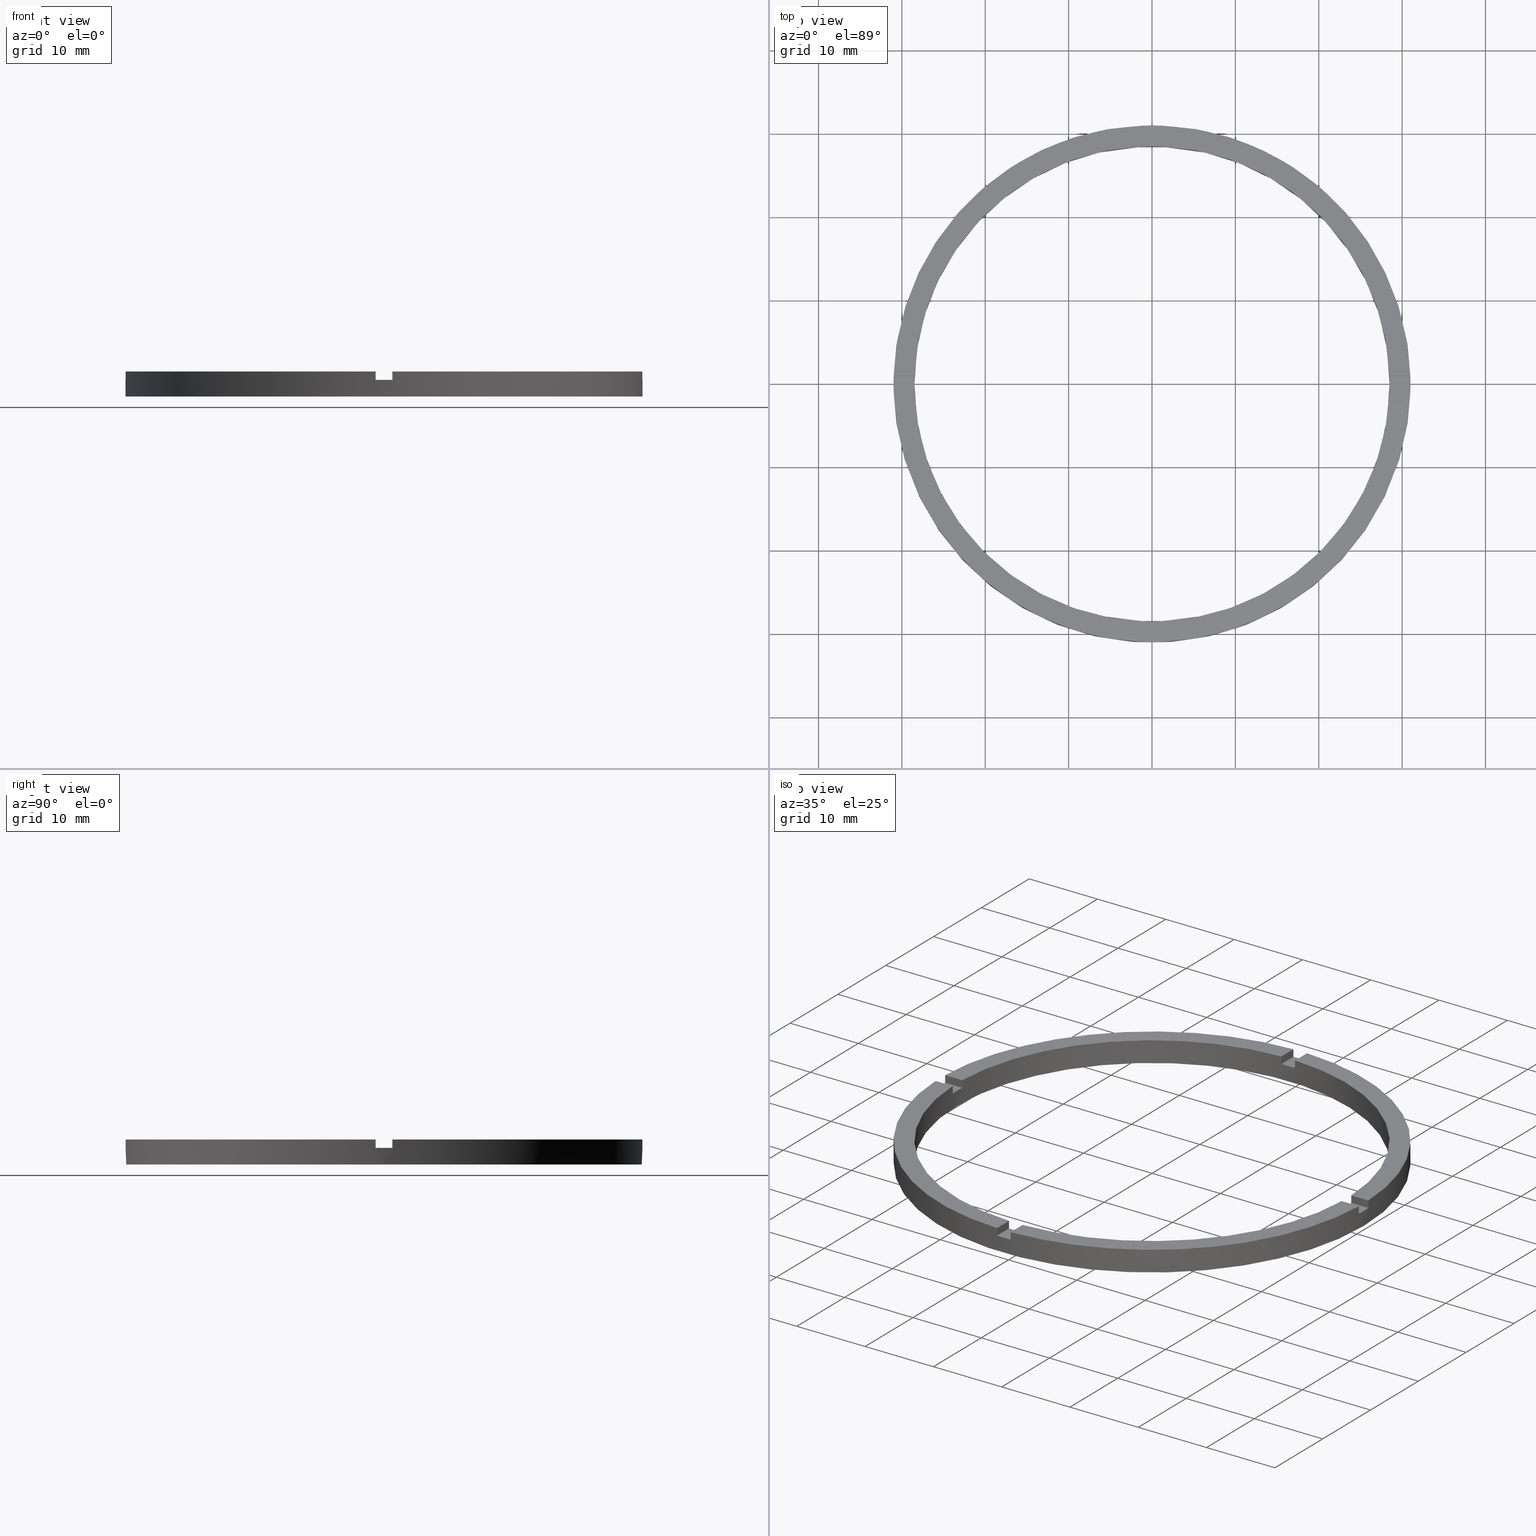
[diagram: canonical four-view strip — front | top / right | iso, engineering-drawing reading convention]
A machine part, canonical four-view strip (front | top / right | iso — engineering-drawing reading convention). The complete STEP part file that produces these views, byte-faithful:
ISO-10303-21;
HEADER;
FILE_DESCRIPTION (( 'STEP AP203' ),
    '1' );
FILE_NAME ('514129.step',
    '2024-12-26T02:40:17',
    ( 'MSI' ),
    ( '' ),
    'SwSTEP 2.0',
    'SolidWorks 2020',
    '' );
FILE_SCHEMA (( 'CONFIG_CONTROL_DESIGN' ));
ENDSEC;

DATA;
#1 = LINE ( 'NONE', #191, #290 ) ;
#2 = CIRCLE ( 'NONE', #505, 28.50000000000000000 ) ;
#3 = UNCERTAINTY_MEASURE_WITH_UNIT (LENGTH_MEASURE( 1.000000000000000082E-05 ), #296, 'distance_accuracy_value', 'NONE');
#4 = CIRCLE ( 'NONE', #220, 31.00000000000000000 ) ;
#5 = DIRECTION ( 'NONE',  ( 0.000000000000000000, 0.000000000000000000, 1.000000000000000000 ) ) ;
#6 = EDGE_CURVE ( 'NONE', #69, #391, #537, .T. ) ;
#7 = DIRECTION ( 'NONE',  ( -0.000000000000000000, 0.000000000000000000, 1.000000000000000000 ) ) ;
#8 = LINE ( 'NONE', #726, #284 ) ;
#9 = CARTESIAN_POINT ( 'NONE',  ( 0.000000000000000000, 0.000000000000000000, 2.000000000000000000 ) ) ;
#10 = APPROVAL_ROLE ( '' ) ;
#11 = EDGE_CURVE ( 'NONE', #58, #325, #530, .T. ) ;
#12 = CARTESIAN_POINT ( 'NONE',  ( -31.00000000000000000, 0.000000000000000000, 0.000000000000000000 ) ) ;
#13 = DIRECTION ( 'NONE',  ( 0.000000000000000000, 0.000000000000000000, 1.000000000000000000 ) ) ;
#14 = DIRECTION ( 'NONE',  ( -0.000000000000000000, -0.000000000000000000, -1.000000000000000000 ) ) ;
#15 = SECURITY_CLASSIFICATION ( '', '', #266 ) ;
#16 = CARTESIAN_POINT ( 'NONE',  ( -1.000000000000162759, -21.00000000000017764, 3.000000000000000000 ) ) ;
#17 = CARTESIAN_POINT ( 'NONE',  ( -30.98386676965933617, -1.000000000000025535, 3.000000000000000000 ) ) ;
#18 = EDGE_CURVE ( 'NONE', #131, #590, #282, .T. ) ;
#19 = DIRECTION ( 'NONE',  ( 0.000000000000000000, 0.000000000000000000, 1.000000000000000000 ) ) ;
#20 = VERTEX_POINT ( 'NONE', #611 ) ;
#21 = AXIS2_PLACEMENT_3D ( 'NONE', #546, #631, #159 ) ;
#22 = ORIENTED_EDGE ( 'NONE', *, *, #384, .T. ) ;
#23 = ORIENTED_EDGE ( 'NONE', *, *, #696, .T. ) ;
#24 = AXIS2_PLACEMENT_3D ( 'NONE', #273, #780, #117 ) ;
#25 = ORIENTED_EDGE ( 'NONE', *, *, #736, .T. ) ;
#26 = ORIENTED_EDGE ( 'NONE', *, *, #78, .F. ) ;
#27 = VERTEX_POINT ( 'NONE', #729 ) ;
#28 = ORIENTED_EDGE ( 'NONE', *, *, #85, .F. ) ;
#29 = CARTESIAN_POINT ( 'NONE',  ( 30.98386676965932907, -1.000000000000158762, 2.000000000000000000 ) ) ;
#30 = VERTEX_POINT ( 'NONE', #80 ) ;
#31 = EDGE_LOOP ( 'NONE', ( #408, #592, #417, #317, #728, #225, #138, #393, #727, #721, #118, #722 ) ) ;
#32 = CARTESIAN_POINT ( 'NONE',  ( 0.000000000000000000, 0.000000000000000000, 3.000000000000000000 ) ) ;
#33 = VERTEX_POINT ( 'NONE', #120 ) ;
#34 = ORIENTED_EDGE ( 'NONE', *, *, #18, .T. ) ;
#35 = DIRECTION ( 'NONE',  ( 1.951563910473907735E-16, -1.000000000000000000, 0.000000000000000000 ) ) ;
#36 = CLOSED_SHELL ( 'NONE', ( #681, #703, #248, #352, #355, #636, #167, #524, #362, #619, #385, #538, #279, #392, #88, #348, #753, #768, #455, #496, #529 ) ) ;
#37 = ORIENTED_EDGE ( 'NONE', *, *, #763, .F. ) ;
#38 = CARTESIAN_POINT ( 'NONE',  ( 30.98386676965932907, -1.000000000000158762, 3.000000000000000000 ) ) ;
#39 = DIRECTION ( 'NONE',  ( 1.000000000000000000, 0.000000000000000000, -0.000000000000000000 ) ) ;
#40 = ORIENTED_EDGE ( 'NONE', *, *, #621, .T. ) ;
#41 = ORIENTED_EDGE ( 'NONE', *, *, #724, .T. ) ;
#42 = EDGE_LOOP ( 'NONE', ( #59, #25, #54, #735, #765, #568 ) ) ;
#43 = DIRECTION ( 'NONE',  ( 0.000000000000000000, 1.000000000000000000, 0.000000000000000000 ) ) ;
#44 = VERTEX_POINT ( 'NONE', #271 ) ;
#45 = EDGE_CURVE ( 'NONE', #569, #309, #778, .T. ) ;
#46 = ORIENTED_EDGE ( 'NONE', *, *, #107, .T. ) ;
#47 = PLANE ( 'NONE',  #584 ) ;
#48 = PERSON_AND_ORGANIZATION_ROLE ( 'design_owner' ) ;
#49 = ORIENTED_EDGE ( 'NONE', *, *, #116, .T. ) ;
#50 = VERTEX_POINT ( 'NONE', #532 ) ;
#51 = ORIENTED_EDGE ( 'NONE', *, *, #112, .T. ) ;
#52 = ORIENTED_EDGE ( 'NONE', *, *, #281, .F. ) ;
#53 = DIRECTION ( 'NONE',  ( 0.000000000000000000, 0.000000000000000000, 1.000000000000000000 ) ) ;
#54 = ORIENTED_EDGE ( 'NONE', *, *, #562, .T. ) ;
#55 = ORIENTED_EDGE ( 'NONE', *, *, #228, .F. ) ;
#56 = DIRECTION ( 'NONE',  ( 1.301042606982605074E-16, -1.000000000000000000, 0.000000000000000000 ) ) ;
#57 = APPLICATION_PROTOCOL_DEFINITION ( 'international standard', 'config_control_design', 1994, #601 ) ;
#58 = VERTEX_POINT ( 'NONE', #589 ) ;
#59 = ORIENTED_EDGE ( 'NONE', *, *, #96, .T. ) ;
#60 = CIRCLE ( 'NONE', #557, 28.50000000000000000 ) ;
#61 = CIRCLE ( 'NONE', #659, 31.00000000000000000 ) ;
#62 = PLANE ( 'NONE',  #327 ) ;
#63 = ORIENTED_EDGE ( 'NONE', *, *, #416, .F. ) ;
#64 = EDGE_CURVE ( 'NONE', #412, #400, #275, .T. ) ;
#65 = LINE ( 'NONE', #328, #586 ) ;
#66 = VERTEX_POINT ( 'NONE', #625 ) ;
#67 = ORIENTED_EDGE ( 'NONE', *, *, #774, .F. ) ;
#68 = VERTEX_POINT ( 'NONE', #89 ) ;
#69 = VERTEX_POINT ( 'NONE', #466 ) ;
#70 = CC_DESIGN_PERSON_AND_ORGANIZATION_ASSIGNMENT ( #708, #431, ( #603 ) ) ;
#71 = ORIENTED_EDGE ( 'NONE', *, *, #358, .F. ) ;
#72 = EDGE_CURVE ( 'NONE', #661, #672, #528, .T. ) ;
#73 = AXIS2_PLACEMENT_3D ( 'NONE', #764, #297, #100 ) ;
#74 = DIRECTION ( 'NONE',  ( -0.000000000000000000, -0.000000000000000000, -1.000000000000000000 ) ) ;
#75 = AXIS2_PLACEMENT_3D ( 'NONE', #577, #19, #658 ) ;
#76 = DIRECTION ( 'NONE',  ( 0.000000000000000000, 0.000000000000000000, 1.000000000000000000 ) ) ;
#77 = DIRECTION ( 'NONE',  ( 0.000000000000000000, 0.000000000000000000, 1.000000000000000000 ) ) ;
#78 = EDGE_CURVE ( 'NONE', #50, #68, #540, .T. ) ;
#79 = AXIS2_PLACEMENT_3D ( 'NONE', #462, #345, #541 ) ;
#80 = CARTESIAN_POINT ( 'NONE',  ( 31.00000000000000000, 3.796405077356795115E-15, 0.000000000000000000 ) ) ;
#81 = CARTESIAN_POINT ( 'NONE',  ( -21.00000000000018119, 0.9999999999999763522, 2.000000000000000000 ) ) ;
#82 = DIRECTION ( 'NONE',  ( 1.000000000000000000, 0.000000000000000000, 0.000000000000000000 ) ) ;
#83 = APPROVAL_STATUS ( 'not_yet_approved' ) ;
#84 = DIRECTION ( 'NONE',  ( 1.000000000000000000, 0.000000000000000000, -0.000000000000000000 ) ) ;
#85 = EDGE_CURVE ( 'NONE', #648, #572, #770, .T. ) ;
#86 = CARTESIAN_POINT ( 'NONE',  ( 0.9999999999999754641, 30.98386676965933617, 3.000000000000000000 ) ) ;
#87 = PLANE ( 'NONE',  #489 ) ;
#88 = ADVANCED_FACE ( 'NONE', ( #781 ), #226, .T. ) ;
#89 = CARTESIAN_POINT ( 'NONE',  ( 30.98386676965932907, -1.000000000000158762, 3.000000000000000000 ) ) ;
#90 = CARTESIAN_POINT ( 'NONE',  ( -1.000000000000161871, -28.48245073725222554, 3.000000000000000000 ) ) ;
#91 = EDGE_CURVE ( 'NONE', #44, #672, #522, .T. ) ;
#92 = DIRECTION ( 'NONE',  ( 0.000000000000000000, 0.000000000000000000, 1.000000000000000000 ) ) ;
#93 = CARTESIAN_POINT ( 'NONE',  ( 0.000000000000000000, 0.000000000000000000, 3.000000000000000000 ) ) ;
#94 = DIRECTION ( 'NONE',  ( 0.000000000000000000, 0.000000000000000000, 1.000000000000000000 ) ) ;
#95 = CARTESIAN_POINT ( 'NONE',  ( -1.000000000000024425, 28.48245073725222909, 3.000000000000000000 ) ) ;
#96 = EDGE_CURVE ( 'NONE', #645, #180, #549, .T. ) ;
#97 = DIRECTION ( 'NONE',  ( -1.000000000000000000, 0.000000000000000000, 0.000000000000000000 ) ) ;
#98 = DIRECTION ( 'NONE',  ( 6.505213034913025371E-17, -1.000000000000000000, 0.000000000000000000 ) ) ;
#99 = AXIS2_PLACEMENT_3D ( 'NONE', #606, #730, #304 ) ;
#100 = DIRECTION ( 'NONE',  ( 1.000000000000000000, 0.000000000000000000, 0.000000000000000000 ) ) ;
#101 = CARTESIAN_POINT ( 'NONE',  ( -28.48245073725222909, -1.000000000000025091, 3.000000000000000000 ) ) ;
#102 = DIRECTION ( 'NONE',  ( -0.000000000000000000, -0.000000000000000000, -1.000000000000000000 ) ) ;
#103 = AXIS2_PLACEMENT_3D ( 'NONE', #223, #525, #295 ) ;
#104 = CARTESIAN_POINT ( 'NONE',  ( 0.000000000000000000, 0.000000000000000000, 3.000000000000000000 ) ) ;
#105 = CARTESIAN_POINT ( 'NONE',  ( 20.99999999999999289, -1.000000000000159428, 2.000000000000000000 ) ) ;
#106 = CARTESIAN_POINT ( 'NONE',  ( 0.9999999999999754641, 30.98386676965933617, 2.000000000000000000 ) ) ;
#107 = EDGE_CURVE ( 'NONE', #648, #44, #259, .T. ) ;
#108 = CARTESIAN_POINT ( 'NONE',  ( -21.00000000000018119, 0.9999999999999763522, 3.000000000000000000 ) ) ;
#109 = CC_DESIGN_APPROVAL ( #647, ( #208 ) ) ;
#110 = VECTOR ( 'NONE', #637, 1000.000000000000000 ) ;
#111 = APPROVAL_ROLE ( '' ) ;
#112 = EDGE_CURVE ( 'NONE', #572, #672, #269, .T. ) ;
#113 = CIRCLE ( 'NONE', #270, 28.50000000000000000 ) ;
#114 = CC_DESIGN_PERSON_AND_ORGANIZATION_ASSIGNMENT ( #723, #48, ( #670 ) ) ;
#115 = CARTESIAN_POINT ( 'NONE',  ( 0.000000000000000000, 0.000000000000000000, 0.000000000000000000 ) ) ;
#116 = EDGE_CURVE ( 'NONE', #569, #391, #4, .T. ) ;
#117 = DIRECTION ( 'NONE',  ( 1.000000000000000000, 0.000000000000000000, 0.000000000000000000 ) ) ;
#118 = ORIENTED_EDGE ( 'NONE', *, *, #196, .T. ) ;
#119 = LINE ( 'NONE', #272, #638 ) ;
#120 = CARTESIAN_POINT ( 'NONE',  ( 28.48245073725222554, -1.000000000000158762, 3.000000000000000000 ) ) ;
#121 = ORIENTED_EDGE ( 'NONE', *, *, #369, .F. ) ;
#122 = DIRECTION ( 'NONE',  ( 0.000000000000000000, 0.000000000000000000, 1.000000000000000000 ) ) ;
#123 = ORIENTED_EDGE ( 'NONE', *, *, #565, .F. ) ;
#124 = DIRECTION ( 'NONE',  ( 1.000000000000000000, 6.505213034913025371E-17, 0.000000000000000000 ) ) ;
#125 = EDGE_CURVE ( 'NONE', #397, #654, #288, .T. ) ;
#126 = CARTESIAN_POINT ( 'NONE',  ( 0.000000000000000000, 0.000000000000000000, 3.000000000000000000 ) ) ;
#127 = CARTESIAN_POINT ( 'NONE',  ( 0.000000000000000000, 0.000000000000000000, 2.000000000000000000 ) ) ;
#128 = DIRECTION ( 'NONE',  ( 0.000000000000000000, 0.000000000000000000, 1.000000000000000000 ) ) ;
#129 = EDGE_LOOP ( 'NONE', ( #160, #742, #720, #316 ) ) ;
#130 = DIRECTION ( 'NONE',  ( 1.301042606982605074E-16, -1.000000000000000000, 0.000000000000000000 ) ) ;
#131 = VERTEX_POINT ( 'NONE', #335 ) ;
#132 = EDGE_LOOP ( 'NONE', ( #23, #640, #587, #657 ) ) ;
#133 = DIRECTION ( 'NONE',  ( 0.000000000000000000, 0.000000000000000000, 1.000000000000000000 ) ) ;
#134 = ORIENTED_EDGE ( 'NONE', *, *, #752, .F. ) ;
#135 = CARTESIAN_POINT ( 'NONE',  ( -1.000000000000024425, 20.99999999999999645, 2.000000000000000000 ) ) ;
#136 = EDGE_LOOP ( 'NONE', ( #389, #137, #52, #63 ) ) ;
#137 = ORIENTED_EDGE ( 'NONE', *, *, #752, .T. ) ;
#138 = ORIENTED_EDGE ( 'NONE', *, *, #125, .T. ) ;
#139 = VECTOR ( 'NONE', #750, 1000.000000000000000 ) ;
#140 = DIRECTION ( 'NONE',  ( 0.000000000000000000, 0.000000000000000000, 1.000000000000000000 ) ) ;
#141 = PRODUCT_DEFINITION_SHAPE ( 'NONE', 'NONE',  #603 ) ;
#142 = FACE_OUTER_BOUND ( 'NONE', #725, .T. ) ;
#143 = CARTESIAN_POINT ( 'NONE',  ( -1.000000000000024425, 30.98386676965933617, 3.000000000000000000 ) ) ;
#144 = EDGE_CURVE ( 'NONE', #329, #66, #783, .T. ) ;
#145 = DIRECTION ( 'NONE',  ( -0.000000000000000000, -0.000000000000000000, -1.000000000000000000 ) ) ;
#146 = CIRCLE ( 'NONE', #73, 31.00000000000000000 ) ;
#147 = DESIGN_CONTEXT ( 'detailed design', #601, 'design' ) ;
#148 = LINE ( 'NONE', #688, #139 ) ;
#149 = ORIENTED_EDGE ( 'NONE', *, *, #607, .T. ) ;
#150 = FACE_OUTER_BOUND ( 'NONE', #42, .T. ) ;
#151 = DIRECTION ( 'NONE',  ( -0.000000000000000000, -0.000000000000000000, -1.000000000000000000 ) ) ;
#152 = ADVANCED_BREP_SHAPE_REPRESENTATION ( '514129', ( #629, #767 ), #360 ) ;
#153 = LINE ( 'NONE', #278, #685 ) ;
#154 = CC_DESIGN_DATE_AND_TIME_ASSIGNMENT ( #202, #260, ( #15 ) ) ;
#155 = CARTESIAN_POINT ( 'NONE',  ( -1.000000000000024425, 28.48245073725222909, 3.000000000000000000 ) ) ;
#156 = CARTESIAN_POINT ( 'NONE',  ( 0.000000000000000000, 0.000000000000000000, 3.000000000000000000 ) ) ;
#157 = FACE_OUTER_BOUND ( 'NONE', #132, .T. ) ;
#158 = AXIS2_PLACEMENT_3D ( 'NONE', #300, #597, #634 ) ;
#159 = DIRECTION ( 'NONE',  ( -1.000000000000000000, 0.000000000000000000, 0.000000000000000000 ) ) ;
#160 = ORIENTED_EDGE ( 'NONE', *, *, #510, .T. ) ;
#161 = VECTOR ( 'NONE', #624, 1000.000000000000000 ) ;
#162 = CARTESIAN_POINT ( 'NONE',  ( 28.48245073725223264, 0.9999999999998412381, 3.000000000000000000 ) ) ;
#163 = ORIENTED_EDGE ( 'NONE', *, *, #416, .T. ) ;
#164 = AXIS2_PLACEMENT_3D ( 'NONE', #32, #350, #387 ) ;
#165 = VECTOR ( 'NONE', #145, 1000.000000000000000 ) ;
#166 = VECTOR ( 'NONE', #337, 1000.000000000000000 ) ;
#167 = ADVANCED_FACE ( 'NONE', ( #291, #556 ), #527, .F. ) ;
#168 = CYLINDRICAL_SURFACE ( 'NONE', #21, 28.50000000000000000 ) ;
#169 = EDGE_CURVE ( 'NONE', #583, #654, #8, .T. ) ;
#170 = CYLINDRICAL_SURFACE ( 'NONE', #545, 31.00000000000000000 ) ;
#171 = ORIENTED_EDGE ( 'NONE', *, *, #192, .F. ) ;
#172 = LINE ( 'NONE', #585, #161 ) ;
#173 = LINE ( 'NONE', #454, #447 ) ;
#174 = CIRCLE ( 'NONE', #649, 31.00000000000000000 ) ;
#175 = AXIS2_PLACEMENT_3D ( 'NONE', #276, #219, #380 ) ;
#176 = ORIENTED_EDGE ( 'NONE', *, *, #72, .F. ) ;
#177 = VECTOR ( 'NONE', #124, 1000.000000000000000 ) ;
#178 = ORIENTED_EDGE ( 'NONE', *, *, #144, .T. ) ;
#179 = EDGE_CURVE ( 'NONE', #69, #409, #550, .T. ) ;
#180 = VERTEX_POINT ( 'NONE', #263 ) ;
#181 = ORGANIZATION ( 'δָ��', 'δָ��', '' ) ;
#182 = CARTESIAN_POINT ( 'NONE',  ( 0.000000000000000000, 0.000000000000000000, 3.000000000000000000 ) ) ;
#183 = DATE_AND_TIME ( #194, #461 ) ;
#184 = CARTESIAN_POINT ( 'NONE',  ( 0.9999999999999754641, 30.98386676965933617, 3.000000000000000000 ) ) ;
#185 = PERSON_AND_ORGANIZATION ( #287, #181 ) ;
#186 = DATE_TIME_ROLE ( 'creation_date' ) ;
#187 = CALENDAR_DATE ( 2024, 26, 12 ) ;
#188 = DIRECTION ( 'NONE',  ( 0.000000000000000000, 0.000000000000000000, 1.000000000000000000 ) ) ;
#189 = VERTEX_POINT ( 'NONE', #571 ) ;
#190 = PERSON_AND_ORGANIZATION ( #287, #181 ) ;
#191 = CARTESIAN_POINT ( 'NONE',  ( 28.48245073725223264, 0.9999999999998412381, 3.000000000000000000 ) ) ;
#192 = EDGE_CURVE ( 'NONE', #400, #732, #1, .T. ) ;
#193 = SHAPE_DEFINITION_REPRESENTATION ( #141, #152 ) ;
#194 = CALENDAR_DATE ( 2024, 26, 12 ) ;
#195 = DIRECTION ( 'NONE',  ( 1.301042606982605074E-16, -1.000000000000000000, 0.000000000000000000 ) ) ;
#196 = EDGE_CURVE ( 'NONE', #398, #33, #2, .T. ) ;
#197 = DIRECTION ( 'NONE',  ( -1.000000000000000000, -1.951563910473907735E-16, 0.000000000000000000 ) ) ;
#198 = ORIENTED_EDGE ( 'NONE', *, *, #216, .T. ) ;
#199 = ORIENTED_EDGE ( 'NONE', *, *, #78, .T. ) ;
#200 = DIRECTION ( 'NONE',  ( 1.000000000000000000, 0.000000000000000000, 0.000000000000000000 ) ) ;
#201 = APPROVAL_ROLE ( '' ) ;
#202 = DATE_AND_TIME ( #468, #702 ) ;
#203 = ORIENTED_EDGE ( 'NONE', *, *, #626, .F. ) ;
#204 = ORIENTED_EDGE ( 'NONE', *, *, #228, .T. ) ;
#205 = LOCAL_TIME ( 10, 40, 17.00000000000000000, #453 ) ;
#206 = DIRECTION ( 'NONE',  ( -1.301042606982605074E-16, 1.000000000000000000, 0.000000000000000000 ) ) ;
#207 = ORIENTED_EDGE ( 'NONE', *, *, #407, .F. ) ;
#208 = PRODUCT_DEFINITION_FORMATION_WITH_SPECIFIED_SOURCE ( '�κ�', '', #670, .NOT_KNOWN. ) ;
#209 = ORIENTED_EDGE ( 'NONE', *, *, #91, .T. ) ;
#210 = APPROVAL_DATE_TIME ( #700, #285 ) ;
#211 = CARTESIAN_POINT ( 'NONE',  ( -28.48245073725223264, 0.9999999999999749090, 2.000000000000000000 ) ) ;
#212 = ORIENTED_EDGE ( 'NONE', *, *, #107, .F. ) ;
#213 = DIRECTION ( 'NONE',  ( 0.000000000000000000, 0.000000000000000000, 1.000000000000000000 ) ) ;
#214 = ORIENTED_EDGE ( 'NONE', *, *, #96, .F. ) ;
#215 = AXIS2_PLACEMENT_3D ( 'NONE', #251, #98, #639 ) ;
#216 = EDGE_CURVE ( 'NONE', #180, #30, #553, .T. ) ;
#217 = DIRECTION ( 'NONE',  ( 0.000000000000000000, -0.000000000000000000, 1.000000000000000000 ) ) ;
#218 = EDGE_LOOP ( 'NONE', ( #37, #41, #579, #665 ) ) ;
#219 = DIRECTION ( 'NONE',  ( 0.000000000000000000, 0.000000000000000000, 1.000000000000000000 ) ) ;
#220 = AXIS2_PLACEMENT_3D ( 'NONE', #127, #666, #676 ) ;
#221 = CARTESIAN_POINT ( 'NONE',  ( -1.000000000000161871, -28.48245073725222554, 2.000000000000000000 ) ) ;
#222 = DATE_AND_TIME ( #187, #205 ) ;
#223 = CARTESIAN_POINT ( 'NONE',  ( 0.000000000000000000, 0.000000000000000000, 2.000000000000000000 ) ) ;
#224 = ORIENTED_EDGE ( 'NONE', *, *, #501, .F. ) ;
#225 = ORIENTED_EDGE ( 'NONE', *, *, #294, .F. ) ;
#226 = PLANE ( 'NONE',  #257 ) ;
#227 = ORIENTED_EDGE ( 'NONE', *, *, #361, .T. ) ;
#228 = EDGE_CURVE ( 'NONE', #322, #245, #531, .T. ) ;
#229 = DIRECTION ( 'NONE',  ( 0.000000000000000000, 0.000000000000000000, 1.000000000000000000 ) ) ;
#230 = AXIS2_PLACEMENT_3D ( 'NONE', #9, #128, #82 ) ;
#231 = VECTOR ( 'NONE', #615, 1000.000000000000000 ) ;
#232 = EDGE_LOOP ( 'NONE', ( #178, #149 ) ) ;
#233 = DIRECTION ( 'NONE',  ( 1.000000000000000000, 0.000000000000000000, 0.000000000000000000 ) ) ;
#234 = CARTESIAN_POINT ( 'NONE',  ( 20.99999999999999289, -1.000000000000159428, 3.000000000000000000 ) ) ;
#235 = LINE ( 'NONE', #737, #739 ) ;
#236 = DIRECTION ( 'NONE',  ( 1.000000000000000000, 0.000000000000000000, 0.000000000000000000 ) ) ;
#237 = VECTOR ( 'NONE', #195, 1000.000000000000000 ) ;
#238 = EDGE_CURVE ( 'NONE', #58, #322, #761, .T. ) ;
#239 = ORIENTED_EDGE ( 'NONE', *, *, #607, .F. ) ;
#240 = CARTESIAN_POINT ( 'NONE',  ( 0.000000000000000000, 0.000000000000000000, 3.000000000000000000 ) ) ;
#241 = LINE ( 'NONE', #442, #237 ) ;
#242 = FACE_OUTER_BOUND ( 'NONE', #334, .T. ) ;
#243 =( NAMED_UNIT ( * ) SI_UNIT ( $, .STERADIAN. ) SOLID_ANGLE_UNIT ( ) );
#244 = ORIENTED_EDGE ( 'NONE', *, *, #757, .T. ) ;
#245 = VERTEX_POINT ( 'NONE', #86 ) ;
#246 = ORIENTED_EDGE ( 'NONE', *, *, #655, .F. ) ;
#247 = DIRECTION ( 'NONE',  ( -1.000000000000000000, 0.000000000000000000, 0.000000000000000000 ) ) ;
#248 = ADVANCED_FACE ( 'NONE', ( #242 ), #521, .T. ) ;
#249 = CARTESIAN_POINT ( 'NONE',  ( -1.000000000000161426, -30.98386676965932907, 3.000000000000000000 ) ) ;
#250 = CARTESIAN_POINT ( 'NONE',  ( 0.9999999999998382405, -28.48245073725223264, 3.000000000000000000 ) ) ;
#251 = CARTESIAN_POINT ( 'NONE',  ( 20.99999999999999289, -1.000000000000159428, 2.000000000000000000 ) ) ;
#252 = CARTESIAN_POINT ( 'NONE',  ( -21.00000000000018119, -1.000000000000023759, 2.000000000000000000 ) ) ;
#253 = VECTOR ( 'NONE', #363, 1000.000000000000000 ) ;
#254 = CC_DESIGN_APPROVAL ( #285, ( #603 ) ) ;
#255 = EDGE_CURVE ( 'NONE', #50, #398, #509, .T. ) ;
#256 = VECTOR ( 'NONE', #526, 1000.000000000000000 ) ;
#257 = AXIS2_PLACEMENT_3D ( 'NONE', #289, #7, #459 ) ;
#258 = DIRECTION ( 'NONE',  ( -6.505213034913025371E-17, 1.000000000000000000, 0.000000000000000000 ) ) ;
#259 = LINE ( 'NONE', #81, #772 ) ;
#260 = DATE_TIME_ROLE ( 'classification_date' ) ;
#261 = EDGE_LOOP ( 'NONE', ( #336, #214, #423, #26, #244, #452, #481, #310, #487, #321, #719, #575 ) ) ;
#262 = DIRECTION ( 'NONE',  ( 1.000000000000000000, 0.000000000000000000, 0.000000000000000000 ) ) ;
#263 = CARTESIAN_POINT ( 'NONE',  ( 31.00000000000000000, 3.796405077356795115E-15, 2.000000000000000000 ) ) ;
#264 = AXIS2_PLACEMENT_3D ( 'NONE', #340, #292, #349 ) ;
#265 = LINE ( 'NONE', #581, #773 ) ;
#266 = SECURITY_CLASSIFICATION_LEVEL ( 'unclassified' ) ;
#267 = VECTOR ( 'NONE', #504, 1000.000000000000000 ) ;
#268 = FACE_OUTER_BOUND ( 'NONE', #136, .T. ) ;
#269 = LINE ( 'NONE', #108, #555 ) ;
#270 = AXIS2_PLACEMENT_3D ( 'NONE', #320, #313, #368 ) ;
#271 = CARTESIAN_POINT ( 'NONE',  ( -30.98386676965933617, 0.9999999999999744649, 2.000000000000000000 ) ) ;
#272 = CARTESIAN_POINT ( 'NONE',  ( -28.48245073725222909, -1.000000000000025091, 3.000000000000000000 ) ) ;
#273 = CARTESIAN_POINT ( 'NONE',  ( 0.000000000000000000, 0.000000000000000000, 3.000000000000000000 ) ) ;
#274 = CARTESIAN_POINT ( 'NONE',  ( 0.000000000000000000, 0.000000000000000000, 3.000000000000000000 ) ) ;
#275 = LINE ( 'NONE', #745, #775 ) ;
#276 = CARTESIAN_POINT ( 'NONE',  ( 0.000000000000000000, 0.000000000000000000, 3.000000000000000000 ) ) ;
#277 = PLANE ( 'NONE',  #744 ) ;
#278 = CARTESIAN_POINT ( 'NONE',  ( 20.99999999999999289, 0.9999999999998406830, 2.000000000000000000 ) ) ;
#279 = ADVANCED_FACE ( 'NONE', ( #734 ), #613, .F. ) ;
#280 = VECTOR ( 'NONE', #122, 1000.000000000000000 ) ;
#281 = EDGE_CURVE ( 'NONE', #189, #325, #235, .T. ) ;
#282 = LINE ( 'NONE', #506, #256 ) ;
#283 = DIRECTION ( 'NONE',  ( -1.000000000000000000, 0.000000000000000000, 0.000000000000000000 ) ) ;
#284 = VECTOR ( 'NONE', #77, 1000.000000000000000 ) ;
#285 = APPROVAL ( #446, 'δָ��' ) ;
#286 = EDGE_CURVE ( 'NONE', #583, #20, #241, .T. ) ;
#287 = PERSON ( 'δָ��', 'δָ��', 'δָ��', ('δָ��'), ('δָ��'), ('δָ��') ) ;
#288 = CIRCLE ( 'NONE', #175, 28.50000000000000000 ) ;
#289 = CARTESIAN_POINT ( 'NONE',  ( 0.000000000000000000, 0.000000000000000000, 2.000000000000000000 ) ) ;
#290 = VECTOR ( 'NONE', #74, 1000.000000000000000 ) ;
#291 = FACE_OUTER_BOUND ( 'NONE', #558, .T. ) ;
#292 = DIRECTION ( 'NONE',  ( 0.000000000000000000, 0.000000000000000000, 1.000000000000000000 ) ) ;
#293 = CARTESIAN_POINT ( 'NONE',  ( -28.48245073725223264, 0.9999999999999749090, 3.000000000000000000 ) ) ;
#294 = EDGE_CURVE ( 'NONE', #397, #646, #119, .T. ) ;
#295 = DIRECTION ( 'NONE',  ( 1.000000000000000000, 0.000000000000000000, 0.000000000000000000 ) ) ;
#296 =( LENGTH_UNIT ( ) NAMED_UNIT ( * ) SI_UNIT ( .MILLI., .METRE. ) );
#297 = DIRECTION ( 'NONE',  ( 0.000000000000000000, -0.000000000000000000, 1.000000000000000000 ) ) ;
#298 = ORIENTED_EDGE ( 'NONE', *, *, #671, .T. ) ;
#299 = ORIENTED_EDGE ( 'NONE', *, *, #286, .T. ) ;
#300 = CARTESIAN_POINT ( 'NONE',  ( 0.000000000000000000, 0.000000000000000000, 2.000000000000000000 ) ) ;
#301 = ORIENTED_EDGE ( 'NONE', *, *, #91, .F. ) ;
#302 = EDGE_LOOP ( 'NONE', ( #203, #467, #594, #199 ) ) ;
#303 = AXIS2_PLACEMENT_3D ( 'NONE', #684, #620, #741 ) ;
#304 = DIRECTION ( 'NONE',  ( -1.000000000000000000, 0.000000000000000000, 0.000000000000000000 ) ) ;
#305 = ORIENTED_EDGE ( 'NONE', *, *, #312, .F. ) ;
#306 = CARTESIAN_POINT ( 'NONE',  ( 0.000000000000000000, 0.000000000000000000, 0.000000000000000000 ) ) ;
#307 = DIRECTION ( 'NONE',  ( 1.000000000000000000, 6.505213034913025371E-17, 0.000000000000000000 ) ) ;
#308 = EDGE_LOOP ( 'NONE', ( #564, #396, #298, #55 ) ) ;
#309 = VERTEX_POINT ( 'NONE', #12 ) ;
#310 = ORIENTED_EDGE ( 'NONE', *, *, #179, .F. ) ;
#311 = VERTEX_POINT ( 'NONE', #376 ) ;
#312 = EDGE_CURVE ( 'NONE', #30, #309, #381, .T. ) ;
#313 = DIRECTION ( 'NONE',  ( 0.000000000000000000, 0.000000000000000000, 1.000000000000000000 ) ) ;
#314 = ORIENTED_EDGE ( 'NONE', *, *, #286, .F. ) ;
#315 = VERTEX_POINT ( 'NONE', #612 ) ;
#316 = ORIENTED_EDGE ( 'NONE', *, *, #6, .F. ) ;
#317 = ORIENTED_EDGE ( 'NONE', *, *, #473, .F. ) ;
#318 = VERTEX_POINT ( 'NONE', #404 ) ;
#319 = CC_DESIGN_PERSON_AND_ORGANIZATION_ASSIGNMENT ( #480, #559, ( #208 ) ) ;
#320 = CARTESIAN_POINT ( 'NONE',  ( 0.000000000000000000, 0.000000000000000000, 3.000000000000000000 ) ) ;
#321 = ORIENTED_EDGE ( 'NONE', *, *, #116, .F. ) ;
#322 = VERTEX_POINT ( 'NONE', #106 ) ;
#323 = AXIS2_PLACEMENT_3D ( 'NONE', #406, #756, #39 ) ;
#324 = EDGE_LOOP ( 'NONE', ( #314, #560, #682, #704 ) ) ;
#325 = VERTEX_POINT ( 'NONE', #507 ) ;
#326 = DIRECTION ( 'NONE',  ( -0.000000000000000000, -0.000000000000000000, -1.000000000000000000 ) ) ;
#327 = AXIS2_PLACEMENT_3D ( 'NONE', #182, #188, #652 ) ;
#328 = CARTESIAN_POINT ( 'NONE',  ( 0.9999999999998382405, -28.48245073725223264, 3.000000000000000000 ) ) ;
#329 = VERTEX_POINT ( 'NONE', #498 ) ;
#330 = DIRECTION ( 'NONE',  ( 1.000000000000000000, 0.000000000000000000, -0.000000000000000000 ) ) ;
#331 = ORIENTED_EDGE ( 'NONE', *, *, #192, .T. ) ;
#332 = FACE_OUTER_BOUND ( 'NONE', #324, .T. ) ;
#333 = LINE ( 'NONE', #755, #769 ) ;
#334 = EDGE_LOOP ( 'NONE', ( #476, #715, #344, #71 ) ) ;
#335 = CARTESIAN_POINT ( 'NONE',  ( 0.9999999999998386846, -30.98386676965933972, 2.000000000000000000 ) ) ;
#336 = ORIENTED_EDGE ( 'NONE', *, *, #216, .F. ) ;
#337 = DIRECTION ( 'NONE',  ( -0.000000000000000000, -1.000000000000000000, -0.000000000000000000 ) ) ;
#338 = EDGE_LOOP ( 'NONE', ( #738, #34, #121, #299 ) ) ;
#339 = ORIENTED_EDGE ( 'NONE', *, *, #358, .T. ) ;
#340 = CARTESIAN_POINT ( 'NONE',  ( 0.000000000000000000, 0.000000000000000000, 2.000000000000000000 ) ) ;
#341 = AXIS2_PLACEMENT_3D ( 'NONE', #664, #343, #206 ) ;
#342 = ORIENTED_EDGE ( 'NONE', *, *, #671, .F. ) ;
#343 = DIRECTION ( 'NONE',  ( 1.000000000000000000, 1.301042606982605074E-16, 0.000000000000000000 ) ) ;
#344 = ORIENTED_EDGE ( 'NONE', *, *, #112, .F. ) ;
#345 = DIRECTION ( 'NONE',  ( 0.000000000000000000, 0.000000000000000000, 1.000000000000000000 ) ) ;
#346 = DIRECTION ( 'NONE',  ( -1.000000000000000000, -6.505213034913025371E-17, -0.000000000000000000 ) ) ;
#347 = AXIS2_PLACEMENT_3D ( 'NONE', #544, #213, #596 ) ;
#348 = ADVANCED_FACE ( 'NONE', ( #635 ), #716, .F. ) ;
#349 = DIRECTION ( 'NONE',  ( 1.000000000000000000, 0.000000000000000000, 0.000000000000000000 ) ) ;
#350 = DIRECTION ( 'NONE',  ( 0.000000000000000000, 0.000000000000000000, 1.000000000000000000 ) ) ;
#351 = CARTESIAN_POINT ( 'NONE',  ( 0.9999999999999754641, 20.99999999999999645, 2.000000000000000000 ) ) ;
#352 = ADVANCED_FACE ( 'NONE', ( #383 ), #371, .T. ) ;
#353 = EDGE_CURVE ( 'NONE', #20, #409, #388, .T. ) ;
#354 = CARTESIAN_POINT ( 'NONE',  ( 0.9999999999999754641, 20.99999999999999645, 3.000000000000000000 ) ) ;
#355 = ADVANCED_FACE ( 'NONE', ( #632 ), #62, .T. ) ;
#356 = CARTESIAN_POINT ( 'NONE',  ( 0.000000000000000000, 0.000000000000000000, 0.000000000000000000 ) ) ;
#357 = CC_DESIGN_PERSON_AND_ORGANIZATION_ASSIGNMENT ( #190, #438, ( #208 ) ) ;
#358 = EDGE_CURVE ( 'NONE', #479, #572, #113, .T. ) ;
#359 = DIRECTION ( 'NONE',  ( 0.000000000000000000, 0.000000000000000000, 1.000000000000000000 ) ) ;
#360 =( GEOMETRIC_REPRESENTATION_CONTEXT ( 3 ) GLOBAL_UNCERTAINTY_ASSIGNED_CONTEXT ( ( #3 ) ) GLOBAL_UNIT_ASSIGNED_CONTEXT ( ( #296, #714, #243 ) ) REPRESENTATION_CONTEXT ( 'NONE', 'WORKASPACE' ) );
#361 = EDGE_CURVE ( 'NONE', #400, #27, #747, .T. ) ;
#362 = ADVANCED_FACE ( 'NONE', ( #511 ), #751, .F. ) ;
#363 = DIRECTION ( 'NONE',  ( 1.000000000000000000, 1.951563910473907735E-16, -0.000000000000000000 ) ) ;
#364 = DIRECTION ( 'NONE',  ( 0.000000000000000000, 0.000000000000000000, 1.000000000000000000 ) ) ;
#365 = EDGE_CURVE ( 'NONE', #391, #646, #513, .T. ) ;
#366 = DIRECTION ( 'NONE',  ( 1.000000000000000000, 0.000000000000000000, 0.000000000000000000 ) ) ;
#367 = AXIS2_PLACEMENT_3D ( 'NONE', #653, #617, #330 ) ;
#368 = DIRECTION ( 'NONE',  ( 1.000000000000000000, 0.000000000000000000, 0.000000000000000000 ) ) ;
#369 = EDGE_CURVE ( 'NONE', #583, #590, #754, .T. ) ;
#370 = CARTESIAN_POINT ( 'NONE',  ( 20.99999999999999289, 0.9999999999998406830, 2.000000000000000000 ) ) ;
#371 = PLANE ( 'NONE',  #548 ) ;
#372 = DIRECTION ( 'NONE',  ( -1.000000000000000000, -1.951563910473907735E-16, 0.000000000000000000 ) ) ;
#373 = EDGE_CURVE ( 'NONE', #398, #590, #65, .T. ) ;
#374 = CARTESIAN_POINT ( 'NONE',  ( 0.9999999999998373523, -21.00000000000017764, 3.000000000000000000 ) ) ;
#375 = DIRECTION ( 'NONE',  ( 1.000000000000000000, 0.000000000000000000, 0.000000000000000000 ) ) ;
#376 = CARTESIAN_POINT ( 'NONE',  ( 30.98386676965933972, 0.9999999999998412381, 2.000000000000000000 ) ) ;
#377 = DIRECTION ( 'NONE',  ( 0.000000000000000000, 0.000000000000000000, 1.000000000000000000 ) ) ;
#378 = CARTESIAN_POINT ( 'NONE',  ( 0.000000000000000000, 0.000000000000000000, 3.000000000000000000 ) ) ;
#379 = AXIS2_PLACEMENT_3D ( 'NONE', #609, #133, #514 ) ;
#380 = DIRECTION ( 'NONE',  ( 1.000000000000000000, 0.000000000000000000, 0.000000000000000000 ) ) ;
#381 = CIRCLE ( 'NONE', #608, 31.00000000000000000 ) ;
#382 = CARTESIAN_POINT ( 'NONE',  ( 0.000000000000000000, 0.000000000000000000, 2.000000000000000000 ) ) ;
#383 = FACE_OUTER_BOUND ( 'NONE', #491, .T. ) ;
#384 = EDGE_CURVE ( 'NONE', #648, #318, #60, .T. ) ;
#385 = ADVANCED_FACE ( 'NONE', ( #588 ), #401, .F. ) ;
#386 = AXIS2_PLACEMENT_3D ( 'NONE', #382, #229, #200 ) ;
#387 = DIRECTION ( 'NONE',  ( 1.000000000000000000, 0.000000000000000000, 0.000000000000000000 ) ) ;
#388 = LINE ( 'NONE', #249, #110 ) ;
#389 = ORIENTED_EDGE ( 'NONE', *, *, #614, .T. ) ;
#390 = AXIS2_PLACEMENT_3D ( 'NONE', #104, #435, #427 ) ;
#391 = VERTEX_POINT ( 'NONE', #600 ) ;
#392 = ADVANCED_FACE ( 'NONE', ( #332 ), #551, .F. ) ;
#393 = ORIENTED_EDGE ( 'NONE', *, *, #169, .F. ) ;
#394 = PLANE ( 'NONE',  #347 ) ;
#395 = PLANE ( 'NONE',  #215 ) ;
#396 = ORIENTED_EDGE ( 'NONE', *, *, #444, .T. ) ;
#397 = VERTEX_POINT ( 'NONE', #101 ) ;
#398 = VERTEX_POINT ( 'NONE', #250 ) ;
#399 = CARTESIAN_POINT ( 'NONE',  ( -30.98386676965933617, 0.9999999999999744649, 3.000000000000000000 ) ) ;
#400 = VERTEX_POINT ( 'NONE', #162 ) ;
#401 = PLANE ( 'NONE',  #432 ) ;
#402 = ORIENTED_EDGE ( 'NONE', *, *, #642, .F. ) ;
#403 = ORIENTED_EDGE ( 'NONE', *, *, #18, .F. ) ;
#404 = CARTESIAN_POINT ( 'NONE',  ( -28.50000000000000000, 0.000000000000000000, 2.000000000000000000 ) ) ;
#405 = CARTESIAN_POINT ( 'NONE',  ( -21.00000000000018119, 0.9999999999999763522, 2.000000000000000000 ) ) ;
#406 = CARTESIAN_POINT ( 'NONE',  ( 0.000000000000000000, 0.000000000000000000, 2.000000000000000000 ) ) ;
#407 = EDGE_CURVE ( 'NONE', #309, #30, #61, .T. ) ;
#408 = ORIENTED_EDGE ( 'NONE', *, *, #520, .T. ) ;
#409 = VERTEX_POINT ( 'NONE', #472 ) ;
#410 = EDGE_LOOP ( 'NONE', ( #224, #712, #471, #502 ) ) ;
#411 = LINE ( 'NONE', #38, #422 ) ;
#412 = VERTEX_POINT ( 'NONE', #698 ) ;
#413 = CYLINDRICAL_SURFACE ( 'NONE', #610, 31.00000000000000000 ) ;
#414 = EDGE_LOOP ( 'NONE', ( #695, #573, #403, #500 ) ) ;
#415 = LINE ( 'NONE', #697, #424 ) ;
#416 = EDGE_CURVE ( 'NONE', #661, #189, #333, .T. ) ;
#417 = ORIENTED_EDGE ( 'NONE', *, *, #144, .F. ) ;
#418 = FACE_OUTER_BOUND ( 'NONE', #308, .T. ) ;
#419 = DIRECTION ( 'NONE',  ( -0.000000000000000000, 0.000000000000000000, 1.000000000000000000 ) ) ;
#420 = LINE ( 'NONE', #105, #677 ) ;
#421 = ORIENTED_EDGE ( 'NONE', *, *, #11, .T. ) ;
#422 = VECTOR ( 'NONE', #94, 1000.000000000000000 ) ;
#423 = ORIENTED_EDGE ( 'NONE', *, *, #535, .T. ) ;
#424 = VECTOR ( 'NONE', #53, 1000.000000000000000 ) ;
#425 = ORIENTED_EDGE ( 'NONE', *, *, #696, .F. ) ;
#426 = FACE_OUTER_BOUND ( 'NONE', #650, .T. ) ;
#427 = DIRECTION ( 'NONE',  ( 1.000000000000000000, 0.000000000000000000, 0.000000000000000000 ) ) ;
#428 = FACE_OUTER_BOUND ( 'NONE', #31, .T. ) ;
#429 = DIRECTION ( 'NONE',  ( 0.000000000000000000, 0.000000000000000000, 1.000000000000000000 ) ) ;
#430 = LINE ( 'NONE', #234, #177 ) ;
#431 = PERSON_AND_ORGANIZATION_ROLE ( 'creator' ) ;
#432 = AXIS2_PLACEMENT_3D ( 'NONE', #405, #494, #766 ) ;
#433 = VECTOR ( 'NONE', #130, 1000.000000000000000 ) ;
#434 = CARTESIAN_POINT ( 'NONE',  ( 0.000000000000000000, 0.000000000000000000, 2.000000000000000000 ) ) ;
#435 = DIRECTION ( 'NONE',  ( 0.000000000000000000, 0.000000000000000000, 1.000000000000000000 ) ) ;
#436 = VECTOR ( 'NONE', #102, 1000.000000000000000 ) ;
#437 = CARTESIAN_POINT ( 'NONE',  ( 0.000000000000000000, 0.000000000000000000, 3.000000000000000000 ) ) ;
#438 = PERSON_AND_ORGANIZATION_ROLE ( 'design_supplier' ) ;
#439 = FACE_OUTER_BOUND ( 'NONE', #129, .T. ) ;
#440 = LINE ( 'NONE', #95, #436 ) ;
#441 = CARTESIAN_POINT ( 'NONE',  ( -31.00000000000000000, 0.000000000000000000, 3.000000000000000000 ) ) ;
#442 = CARTESIAN_POINT ( 'NONE',  ( -1.000000000000162759, -21.00000000000017764, 2.000000000000000000 ) ) ;
#443 = LINE ( 'NONE', #552, #165 ) ;
#444 = EDGE_CURVE ( 'NONE', #58, #27, #265, .T. ) ;
#445 = CARTESIAN_POINT ( 'NONE',  ( 0.9999999999999754641, 20.99999999999999645, 2.000000000000000000 ) ) ;
#446 = APPROVAL_STATUS ( 'not_yet_approved' ) ;
#447 = VECTOR ( 'NONE', #14, 1000.000000000000000 ) ;
#448 = DIRECTION ( 'NONE',  ( -0.000000000000000000, -0.000000000000000000, -1.000000000000000000 ) ) ;
#449 = DIRECTION ( 'NONE',  ( 0.000000000000000000, 0.000000000000000000, 1.000000000000000000 ) ) ;
#450 = PERSON_AND_ORGANIZATION ( #287, #181 ) ;
#451 = DIRECTION ( 'NONE',  ( 1.000000000000000000, 0.000000000000000000, -0.000000000000000000 ) ) ;
#452 = ORIENTED_EDGE ( 'NONE', *, *, #457, .F. ) ;
#453 = COORDINATED_UNIVERSAL_TIME_OFFSET ( 8, 0, .AHEAD. ) ;
#454 = CARTESIAN_POINT ( 'NONE',  ( 30.98386676965933972, 0.9999999999998412381, 3.000000000000000000 ) ) ;
#455 = ADVANCED_FACE ( 'NONE', ( #268 ), #87, .F. ) ;
#456 = DIRECTION ( 'NONE',  ( 1.000000000000000000, 0.000000000000000000, 0.000000000000000000 ) ) ;
#457 = EDGE_CURVE ( 'NONE', #20, #131, #539, .T. ) ;
#458 = CALENDAR_DATE ( 2024, 26, 12 ) ;
#459 = DIRECTION ( 'NONE',  ( 1.000000000000000000, 0.000000000000000000, 0.000000000000000000 ) ) ;
#460 = EDGE_LOOP ( 'NONE', ( #212, #651, #51, #301 ) ) ;
#461 = LOCAL_TIME ( 10, 40, 17.00000000000000000, #477 ) ;
#462 = CARTESIAN_POINT ( 'NONE',  ( 0.000000000000000000, 0.000000000000000000, 0.000000000000000000 ) ) ;
#463 = CALENDAR_DATE ( 2024, 26, 12 ) ;
#464 = COORDINATED_UNIVERSAL_TIME_OFFSET ( 8, 0, .AHEAD. ) ;
#465 = PERSON_AND_ORGANIZATION ( #287, #181 ) ;
#466 = CARTESIAN_POINT ( 'NONE',  ( -30.98386676965933617, -1.000000000000025535, 3.000000000000000000 ) ) ;
#467 = ORIENTED_EDGE ( 'NONE', *, *, #196, .F. ) ;
#468 = CALENDAR_DATE ( 2024, 26, 12 ) ;
#469 = CARTESIAN_POINT ( 'NONE',  ( 0.9999999999998382405, -28.48245073725223264, 2.000000000000000000 ) ) ;
#470 = COORDINATED_UNIVERSAL_TIME_OFFSET ( 8, 0, .AHEAD. ) ;
#471 = ORIENTED_EDGE ( 'NONE', *, *, #510, .F. ) ;
#472 = CARTESIAN_POINT ( 'NONE',  ( -1.000000000000161426, -30.98386676965932907, 3.000000000000000000 ) ) ;
#473 = EDGE_CURVE ( 'NONE', #318, #329, #777, .T. ) ;
#474 = ORIENTED_EDGE ( 'NONE', *, *, #473, .T. ) ;
#475 = APPROVAL_PERSON_ORGANIZATION ( #450, #285, #10 ) ;
#476 = ORIENTED_EDGE ( 'NONE', *, *, #614, .F. ) ;
#477 = COORDINATED_UNIVERSAL_TIME_OFFSET ( 8, 0, .AHEAD. ) ;
#478 = CARTESIAN_POINT ( 'NONE',  ( -31.00000000000000000, 0.000000000000000000, 2.000000000000000000 ) ) ;
#479 = VERTEX_POINT ( 'NONE', #155 ) ;
#480 = PERSON_AND_ORGANIZATION ( #287, #181 ) ;
#481 = ORIENTED_EDGE ( 'NONE', *, *, #353, .T. ) ;
#482 = APPLICATION_PROTOCOL_DEFINITION ( 'international standard', 'config_control_design', 1994, #547 ) ;
#483 = PERSON_AND_ORGANIZATION ( #287, #181 ) ;
#484 = AXIS2_PLACEMENT_3D ( 'NONE', #434, #217, #456 ) ;
#485 = DATE_AND_TIME ( #463, #705 ) ;
#486 = ORIENTED_EDGE ( 'NONE', *, *, #45, .F. ) ;
#487 = ORIENTED_EDGE ( 'NONE', *, *, #6, .T. ) ;
#488 = APPROVAL_DATE_TIME ( #222, #647 ) ;
#489 = AXIS2_PLACEMENT_3D ( 'NONE', #135, #97, #536 ) ;
#490 = COORDINATED_UNIVERSAL_TIME_OFFSET ( 8, 0, .AHEAD. ) ;
#491 = EDGE_LOOP ( 'NONE', ( #342, #495, #709, #595 ) ) ;
#492 = ORIENTED_EDGE ( 'NONE', *, *, #565, .T. ) ;
#493 = CARTESIAN_POINT ( 'NONE',  ( 0.000000000000000000, 0.000000000000000000, 2.000000000000000000 ) ) ;
#494 = DIRECTION ( 'NONE',  ( -1.951563910473907735E-16, 1.000000000000000000, 0.000000000000000000 ) ) ;
#495 = ORIENTED_EDGE ( 'NONE', *, *, #361, .F. ) ;
#496 = ADVANCED_FACE ( 'NONE', ( #418 ), #47, .F. ) ;
#497 = VECTOR ( 'NONE', #576, 1000.000000000000000 ) ;
#498 = CARTESIAN_POINT ( 'NONE',  ( -28.50000000000000000, 0.000000000000000000, 0.000000000000000000 ) ) ;
#499 = CC_DESIGN_PERSON_AND_ORGANIZATION_ASSIGNMENT ( #483, #660, ( #15 ) ) ;
#500 = ORIENTED_EDGE ( 'NONE', *, *, #757, .F. ) ;
#501 = EDGE_CURVE ( 'NONE', #654, #409, #686, .T. ) ;
#502 = ORIENTED_EDGE ( 'NONE', *, *, #179, .T. ) ;
#503 = DIRECTION ( 'NONE',  ( -0.000000000000000000, -0.000000000000000000, -1.000000000000000000 ) ) ;
#504 = DIRECTION ( 'NONE',  ( -0.000000000000000000, -0.000000000000000000, -1.000000000000000000 ) ) ;
#505 = AXIS2_PLACEMENT_3D ( 'NONE', #437, #429, #375 ) ;
#506 = CARTESIAN_POINT ( 'NONE',  ( 0.9999999999998373523, -21.00000000000017764, 2.000000000000000000 ) ) ;
#507 = CARTESIAN_POINT ( 'NONE',  ( -1.000000000000024425, 28.48245073725222909, 2.000000000000000000 ) ) ;
#508 = CARTESIAN_POINT ( 'NONE',  ( 31.00000000000000000, 3.796405077356795115E-15, 3.000000000000000000 ) ) ;
#509 = LINE ( 'NONE', #374, #497 ) ;
#510 = EDGE_CURVE ( 'NONE', #69, #397, #172, .T. ) ;
#511 = FACE_OUTER_BOUND ( 'NONE', #598, .T. ) ;
#512 = DIRECTION ( 'NONE',  ( -0.000000000000000000, -0.000000000000000000, -1.000000000000000000 ) ) ;
#513 = LINE ( 'NONE', #252, #253 ) ;
#514 = DIRECTION ( 'NONE',  ( 1.000000000000000000, 0.000000000000000000, 0.000000000000000000 ) ) ;
#515 = CARTESIAN_POINT ( 'NONE',  ( -28.48245073725222909, -1.000000000000025091, 2.000000000000000000 ) ) ;
#516 = APPROVAL_STATUS ( 'not_yet_approved' ) ;
#517 = DIRECTION ( 'NONE',  ( -0.000000000000000000, -0.000000000000000000, -1.000000000000000000 ) ) ;
#518 = DIRECTION ( 'NONE',  ( -0.000000000000000000, -1.000000000000000000, -0.000000000000000000 ) ) ;
#519 = VECTOR ( 'NONE', #570, 1000.000000000000000 ) ;
#520 = EDGE_CURVE ( 'NONE', #644, #315, #692, .T. ) ;
#521 = PLANE ( 'NONE',  #740 ) ;
#522 = LINE ( 'NONE', #567, #280 ) ;
#523 = VECTOR ( 'NONE', #326, 1000.000000000000000 ) ;
#524 = ADVANCED_FACE ( 'NONE', ( #690 ), #413, .T. ) ;
#525 = DIRECTION ( 'NONE',  ( -0.000000000000000000, 0.000000000000000000, 1.000000000000000000 ) ) ;
#526 = DIRECTION ( 'NONE',  ( -1.301042606982605074E-16, 1.000000000000000000, -0.000000000000000000 ) ) ;
#527 = PLANE ( 'NONE',  #367 ) ;
#528 = CIRCLE ( 'NONE', #164, 31.00000000000000000 ) ;
#529 = ADVANCED_FACE ( 'NONE', ( #157 ), #616, .T. ) ;
#530 = CIRCLE ( 'NONE', #484, 28.50000000000000000 ) ;
#531 = LINE ( 'NONE', #184, #760 ) ;
#532 = CARTESIAN_POINT ( 'NONE',  ( 0.9999999999998386846, -30.98386676965933972, 3.000000000000000000 ) ) ;
#533 = VECTOR ( 'NONE', #683, 1000.000000000000000 ) ;
#534 = CARTESIAN_POINT ( 'NONE',  ( 28.48245073725222554, -1.000000000000158762, 2.000000000000000000 ) ) ;
#535 = EDGE_CURVE ( 'NONE', #645, #68, #411, .T. ) ;
#536 = DIRECTION ( 'NONE',  ( 0.000000000000000000, 0.000000000000000000, 1.000000000000000000 ) ) ;
#537 = LINE ( 'NONE', #17, #523 ) ;
#538 = ADVANCED_FACE ( 'NONE', ( #142 ), #394, .T. ) ;
#539 = CIRCLE ( 'NONE', #103, 31.00000000000000000 ) ;
#540 = CIRCLE ( 'NONE', #628, 31.00000000000000000 ) ;
#541 = DIRECTION ( 'NONE',  ( 1.000000000000000000, 0.000000000000000000, 0.000000000000000000 ) ) ;
#542 = VECTOR ( 'NONE', #517, 1000.000000000000000 ) ;
#543 = CC_DESIGN_DATE_AND_TIME_ASSIGNMENT ( #183, #186, ( #603 ) ) ;
#544 = CARTESIAN_POINT ( 'NONE',  ( 0.000000000000000000, 0.000000000000000000, 2.000000000000000000 ) ) ;
#545 = AXIS2_PLACEMENT_3D ( 'NONE', #240, #151, #247 ) ;
#546 = CARTESIAN_POINT ( 'NONE',  ( 0.000000000000000000, 0.000000000000000000, 3.000000000000000000 ) ) ;
#547 = APPLICATION_CONTEXT ( 'configuration controlled 3d designs of mechanical parts and assemblies' ) ;
#548 = AXIS2_PLACEMENT_3D ( 'NONE', #771, #779, #776 ) ;
#549 = CIRCLE ( 'NONE', #75, 31.00000000000000000 ) ;
#550 = CIRCLE ( 'NONE', #24, 31.00000000000000000 ) ;
#551 = PLANE ( 'NONE',  #554 ) ;
#552 = CARTESIAN_POINT ( 'NONE',  ( 0.9999999999998386846, -30.98386676965933972, 3.000000000000000000 ) ) ;
#553 = LINE ( 'NONE', #508, #267 ) ;
#554 = AXIS2_PLACEMENT_3D ( 'NONE', #633, #706, #56 ) ;
#555 = VECTOR ( 'NONE', #372, 1000.000000000000000 ) ;
#556 = FACE_BOUND ( 'NONE', #232, .T. ) ;
#557 = AXIS2_PLACEMENT_3D ( 'NONE', #561, #5, #366 ) ;
#558 = EDGE_LOOP ( 'NONE', ( #207, #305 ) ) ;
#559 = PERSON_AND_ORGANIZATION_ROLE ( 'creator' ) ;
#560 = ORIENTED_EDGE ( 'NONE', *, *, #169, .T. ) ;
#561 = CARTESIAN_POINT ( 'NONE',  ( 0.000000000000000000, 0.000000000000000000, 2.000000000000000000 ) ) ;
#562 = EDGE_CURVE ( 'NONE', #311, #732, #153, .T. ) ;
#563 = ORIENTED_EDGE ( 'NONE', *, *, #736, .F. ) ;
#564 = ORIENTED_EDGE ( 'NONE', *, *, #238, .F. ) ;
#565 = EDGE_CURVE ( 'NONE', #412, #311, #173, .T. ) ;
#566 = EDGE_LOOP ( 'NONE', ( #641, #331, #574, #123 ) ) ;
#567 = CARTESIAN_POINT ( 'NONE',  ( -30.98386676965933617, 0.9999999999999744649, 3.000000000000000000 ) ) ;
#568 = ORIENTED_EDGE ( 'NONE', *, *, #763, .T. ) ;
#569 = VERTEX_POINT ( 'NONE', #478 ) ;
#570 = DIRECTION ( 'NONE',  ( -0.000000000000000000, -0.000000000000000000, -1.000000000000000000 ) ) ;
#571 = CARTESIAN_POINT ( 'NONE',  ( -1.000000000000024425, 30.98386676965933617, 2.000000000000000000 ) ) ;
#572 = VERTEX_POINT ( 'NONE', #733 ) ;
#573 = ORIENTED_EDGE ( 'NONE', *, *, #373, .T. ) ;
#574 = ORIENTED_EDGE ( 'NONE', *, *, #562, .F. ) ;
#575 = ORIENTED_EDGE ( 'NONE', *, *, #407, .T. ) ;
#576 = DIRECTION ( 'NONE',  ( -1.301042606982605074E-16, 1.000000000000000000, -0.000000000000000000 ) ) ;
#577 = CARTESIAN_POINT ( 'NONE',  ( 0.000000000000000000, 0.000000000000000000, 2.000000000000000000 ) ) ;
#578 = AXIS2_PLACEMENT_3D ( 'NONE', #493, #419, #604 ) ;
#579 = ORIENTED_EDGE ( 'NONE', *, *, #626, .T. ) ;
#580 = ORIENTED_EDGE ( 'NONE', *, *, #642, .T. ) ;
#581 = CARTESIAN_POINT ( 'NONE',  ( 0.9999999999999754641, 28.48245073725223264, 3.000000000000000000 ) ) ;
#582 = ORIENTED_EDGE ( 'NONE', *, *, #384, .F. ) ;
#583 = VERTEX_POINT ( 'NONE', #221 ) ;
#584 = AXIS2_PLACEMENT_3D ( 'NONE', #351, #591, #680 ) ;
#585 = CARTESIAN_POINT ( 'NONE',  ( -21.00000000000018119, -1.000000000000023759, 3.000000000000000000 ) ) ;
#586 = VECTOR ( 'NONE', #503, 1000.000000000000000 ) ;
#587 = ORIENTED_EDGE ( 'NONE', *, *, #11, .F. ) ;
#588 = FACE_OUTER_BOUND ( 'NONE', #460, .T. ) ;
#589 = CARTESIAN_POINT ( 'NONE',  ( 0.9999999999999754641, 28.48245073725223264, 2.000000000000000000 ) ) ;
#590 = VERTEX_POINT ( 'NONE', #469 ) ;
#591 = DIRECTION ( 'NONE',  ( 1.000000000000000000, -0.000000000000000000, 0.000000000000000000 ) ) ;
#592 = ORIENTED_EDGE ( 'NONE', *, *, #655, .T. ) ;
#593 = ORIENTED_EDGE ( 'NONE', *, *, #365, .T. ) ;
#594 = ORIENTED_EDGE ( 'NONE', *, *, #255, .F. ) ;
#595 = ORIENTED_EDGE ( 'NONE', *, *, #774, .T. ) ;
#596 = DIRECTION ( 'NONE',  ( 1.000000000000000000, 0.000000000000000000, -0.000000000000000000 ) ) ;
#597 = DIRECTION ( 'NONE',  ( 0.000000000000000000, 0.000000000000000000, 1.000000000000000000 ) ) ;
#598 = EDGE_LOOP ( 'NONE', ( #246, #40, #171, #227, #701, #421, #134, #339, #28, #22, #474, #239 ) ) ;
#599 = CC_DESIGN_SECURITY_CLASSIFICATION ( #15, ( #208 ) ) ;
#600 = CARTESIAN_POINT ( 'NONE',  ( -30.98386676965933617, -1.000000000000025535, 2.000000000000000000 ) ) ;
#601 = APPLICATION_CONTEXT ( 'configuration controlled 3d designs of mechanical parts and assemblies' ) ;
#602 = EDGE_CURVE ( 'NONE', #318, #646, #669, .T. ) ;
#603 = PRODUCT_DEFINITION ( 'δ֪', '', #208, #147 ) ;
#604 = DIRECTION ( 'NONE',  ( 1.000000000000000000, 0.000000000000000000, 0.000000000000000000 ) ) ;
#605 = DIRECTION ( 'NONE',  ( 1.000000000000000000, 0.000000000000000000, 0.000000000000000000 ) ) ;
#606 = CARTESIAN_POINT ( 'NONE',  ( 0.000000000000000000, 0.000000000000000000, 3.000000000000000000 ) ) ;
#607 = EDGE_CURVE ( 'NONE', #66, #329, #694, .T. ) ;
#608 = AXIS2_PLACEMENT_3D ( 'NONE', #115, #76, #262 ) ;
#609 = CARTESIAN_POINT ( 'NONE',  ( 0.000000000000000000, 0.000000000000000000, 0.000000000000000000 ) ) ;
#610 = AXIS2_PLACEMENT_3D ( 'NONE', #378, #448, #283 ) ;
#611 = CARTESIAN_POINT ( 'NONE',  ( -1.000000000000161426, -30.98386676965932907, 2.000000000000000000 ) ) ;
#612 = CARTESIAN_POINT ( 'NONE',  ( 28.50000000000000000, 3.490243377569956456E-15, 2.000000000000000000 ) ) ;
#613 = PLANE ( 'NONE',  #341 ) ;
#614 = EDGE_CURVE ( 'NONE', #661, #479, #679, .T. ) ;
#615 = DIRECTION ( 'NONE',  ( 0.000000000000000000, 1.000000000000000000, 0.000000000000000000 ) ) ;
#616 = PLANE ( 'NONE',  #711 ) ;
#617 = DIRECTION ( 'NONE',  ( 0.000000000000000000, 0.000000000000000000, 1.000000000000000000 ) ) ;
#618 = APPROVAL ( #516, 'δָ��' ) ;
#619 = ADVANCED_FACE ( 'NONE', ( #439 ), #277, .F. ) ;
#620 = DIRECTION ( 'NONE',  ( 0.000000000000000000, 0.000000000000000000, 1.000000000000000000 ) ) ;
#621 = EDGE_CURVE ( 'NONE', #315, #732, #673, .T. ) ;
#622 = AXIS2_PLACEMENT_3D ( 'NONE', #370, #258, #656 ) ;
#623 = PLANE ( 'NONE',  #782 ) ;
#624 = DIRECTION ( 'NONE',  ( 1.000000000000000000, 1.951563910473907735E-16, -0.000000000000000000 ) ) ;
#625 = CARTESIAN_POINT ( 'NONE',  ( 28.50000000000000000, 3.490243377569956456E-15, 0.000000000000000000 ) ) ;
#626 = EDGE_CURVE ( 'NONE', #33, #68, #430, .T. ) ;
#627 = CARTESIAN_POINT ( 'NONE',  ( -28.50000000000000000, 0.000000000000000000, 3.000000000000000000 ) ) ;
#628 = AXIS2_PLACEMENT_3D ( 'NONE', #93, #140, #233 ) ;
#629 = MANIFOLD_SOLID_BREP ( '�г�-����1', #36 ) ;
#630 = DIRECTION ( 'NONE',  ( 0.000000000000000000, 0.000000000000000000, 1.000000000000000000 ) ) ;
#631 = DIRECTION ( 'NONE',  ( -0.000000000000000000, -0.000000000000000000, -1.000000000000000000 ) ) ;
#632 = FACE_OUTER_BOUND ( 'NONE', #302, .T. ) ;
#633 = CARTESIAN_POINT ( 'NONE',  ( -1.000000000000162759, -21.00000000000017764, 2.000000000000000000 ) ) ;
#634 = DIRECTION ( 'NONE',  ( 1.000000000000000000, 0.000000000000000000, 0.000000000000000000 ) ) ;
#635 = FACE_OUTER_BOUND ( 'NONE', #566, .T. ) ;
#636 = ADVANCED_FACE ( 'NONE', ( #675 ), #623, .T. ) ;
#637 = DIRECTION ( 'NONE',  ( 0.000000000000000000, 0.000000000000000000, 1.000000000000000000 ) ) ;
#638 = VECTOR ( 'NONE', #512, 1000.000000000000000 ) ;
#639 = DIRECTION ( 'NONE',  ( 1.000000000000000000, 6.505213034913025371E-17, 0.000000000000000000 ) ) ;
#640 = ORIENTED_EDGE ( 'NONE', *, *, #281, .T. ) ;
#641 = ORIENTED_EDGE ( 'NONE', *, *, #64, .T. ) ;
#642 = EDGE_CURVE ( 'NONE', #44, #569, #663, .T. ) ;
#643 = ORIENTED_EDGE ( 'NONE', *, *, #312, .T. ) ;
#644 = VERTEX_POINT ( 'NONE', #534 ) ;
#645 = VERTEX_POINT ( 'NONE', #29 ) ;
#646 = VERTEX_POINT ( 'NONE', #515 ) ;
#647 = APPROVAL ( #83, 'δָ��' ) ;
#648 = VERTEX_POINT ( 'NONE', #211 ) ;
#649 = AXIS2_PLACEMENT_3D ( 'NONE', #156, #630, #236 ) ;
#650 = EDGE_LOOP ( 'NONE', ( #563, #198, #643, #486, #402, #209, #176, #163, #425, #204, #67, #492 ) ) ;
#651 = ORIENTED_EDGE ( 'NONE', *, *, #85, .T. ) ;
#652 = DIRECTION ( 'NONE',  ( 1.000000000000000000, 0.000000000000000000, -0.000000000000000000 ) ) ;
#653 = CARTESIAN_POINT ( 'NONE',  ( 0.000000000000000000, 0.000000000000000000, 0.000000000000000000 ) ) ;
#654 = VERTEX_POINT ( 'NONE', #90 ) ;
#655 = EDGE_CURVE ( 'NONE', #315, #66, #148, .T. ) ;
#656 = DIRECTION ( 'NONE',  ( -1.000000000000000000, -6.505213034913025371E-17, 0.000000000000000000 ) ) ;
#657 = ORIENTED_EDGE ( 'NONE', *, *, #238, .T. ) ;
#658 = DIRECTION ( 'NONE',  ( 1.000000000000000000, 0.000000000000000000, 0.000000000000000000 ) ) ;
#659 = AXIS2_PLACEMENT_3D ( 'NONE', #306, #364, #605 ) ;
#660 = PERSON_AND_ORGANIZATION_ROLE ( 'classification_officer' ) ;
#661 = VERTEX_POINT ( 'NONE', #143 ) ;
#662 = VECTOR ( 'NONE', #43, 1000.000000000000000 ) ;
#663 = CIRCLE ( 'NONE', #303, 31.00000000000000000 ) ;
#664 = CARTESIAN_POINT ( 'NONE',  ( 0.9999999999998373523, -21.00000000000017764, 2.000000000000000000 ) ) ;
#665 = ORIENTED_EDGE ( 'NONE', *, *, #535, .F. ) ;
#666 = DIRECTION ( 'NONE',  ( 0.000000000000000000, 0.000000000000000000, 1.000000000000000000 ) ) ;
#667 = CIRCLE ( 'NONE', #158, 31.00000000000000000 ) ;
#668 = CARTESIAN_POINT ( 'NONE',  ( -1.000000000000024425, 20.99999999999999645, 3.000000000000000000 ) ) ;
#669 = CIRCLE ( 'NONE', #386, 28.50000000000000000 ) ;
#670 = PRODUCT ( '514129', '514129', '', ( #759 ) ) ;
#671 = EDGE_CURVE ( 'NONE', #27, #245, #687, .T. ) ;
#672 = VERTEX_POINT ( 'NONE', #399 ) ;
#673 = CIRCLE ( 'NONE', #230, 28.50000000000000000 ) ;
#674 = DIRECTION ( 'NONE',  ( 0.000000000000000000, -0.000000000000000000, 1.000000000000000000 ) ) ;
#675 = FACE_OUTER_BOUND ( 'NONE', #410, .T. ) ;
#676 = DIRECTION ( 'NONE',  ( 1.000000000000000000, 0.000000000000000000, 0.000000000000000000 ) ) ;
#677 = VECTOR ( 'NONE', #307, 1000.000000000000000 ) ;
#678 = CARTESIAN_POINT ( 'NONE',  ( -21.00000000000018119, -1.000000000000023759, 2.000000000000000000 ) ) ;
#679 = LINE ( 'NONE', #668, #166 ) ;
#680 = DIRECTION ( 'NONE',  ( 0.000000000000000000, 0.000000000000000000, -1.000000000000000000 ) ) ;
#681 = ADVANCED_FACE ( 'NONE', ( #428 ), #168, .F. ) ;
#682 = ORIENTED_EDGE ( 'NONE', *, *, #501, .T. ) ;
#683 = DIRECTION ( 'NONE',  ( 0.000000000000000000, 0.000000000000000000, 1.000000000000000000 ) ) ;
#684 = CARTESIAN_POINT ( 'NONE',  ( 0.000000000000000000, 0.000000000000000000, 2.000000000000000000 ) ) ;
#685 = VECTOR ( 'NONE', #346, 1000.000000000000000 ) ;
#686 = LINE ( 'NONE', #16, #433 ) ;
#687 = LINE ( 'NONE', #354, #662 ) ;
#688 = CARTESIAN_POINT ( 'NONE',  ( 28.50000000000000000, 3.490243377569956456E-15, 3.000000000000000000 ) ) ;
#689 = FACE_OUTER_BOUND ( 'NONE', #218, .T. ) ;
#690 = FACE_OUTER_BOUND ( 'NONE', #261, .T. ) ;
#691 = DIRECTION ( 'NONE',  ( 1.000000000000000000, 0.000000000000000000, -0.000000000000000000 ) ) ;
#692 = CIRCLE ( 'NONE', #264, 28.50000000000000000 ) ;
#693 = PRODUCT_RELATED_PRODUCT_CATEGORY ( 'detail', '', ( #670 ) ) ;
#694 = CIRCLE ( 'NONE', #79, 28.50000000000000000 ) ;
#695 = ORIENTED_EDGE ( 'NONE', *, *, #255, .T. ) ;
#696 = EDGE_CURVE ( 'NONE', #322, #189, #146, .T. ) ;
#697 = CARTESIAN_POINT ( 'NONE',  ( 28.48245073725222554, -1.000000000000158762, 3.000000000000000000 ) ) ;
#698 = CARTESIAN_POINT ( 'NONE',  ( 30.98386676965933972, 0.9999999999998412381, 3.000000000000000000 ) ) ;
#699 = DIRECTION ( 'NONE',  ( 1.000000000000000000, 0.000000000000000000, 0.000000000000000000 ) ) ;
#700 = DATE_AND_TIME ( #458, #710 ) ;
#701 = ORIENTED_EDGE ( 'NONE', *, *, #444, .F. ) ;
#702 = LOCAL_TIME ( 10, 40, 17.00000000000000000, #464 ) ;
#703 = ADVANCED_FACE ( 'NONE', ( #426 ), #170, .T. ) ;
#704 = ORIENTED_EDGE ( 'NONE', *, *, #353, .F. ) ;
#705 = LOCAL_TIME ( 10, 40, 17.00000000000000000, #470 ) ;
#706 = DIRECTION ( 'NONE',  ( -1.000000000000000000, -1.301042606982605074E-16, 0.000000000000000000 ) ) ;
#707 = PLANE ( 'NONE',  #323 ) ;
#708 = PERSON_AND_ORGANIZATION ( #287, #181 ) ;
#709 = ORIENTED_EDGE ( 'NONE', *, *, #64, .F. ) ;
#710 = LOCAL_TIME ( 10, 40, 17.00000000000000000, #490 ) ;
#711 = AXIS2_PLACEMENT_3D ( 'NONE', #748, #674, #691 ) ;
#712 = ORIENTED_EDGE ( 'NONE', *, *, #125, .F. ) ;
#713 = APPROVAL_PERSON_ORGANIZATION ( #185, #618, #111 ) ;
#714 =( NAMED_UNIT ( * ) PLANE_ANGLE_UNIT ( ) SI_UNIT ( $, .RADIAN. ) );
#715 = ORIENTED_EDGE ( 'NONE', *, *, #72, .T. ) ;
#716 = PLANE ( 'NONE',  #622 ) ;
#717 = APPROVAL_DATE_TIME ( #485, #618 ) ;
#718 = APPROVAL_PERSON_ORGANIZATION ( #465, #647, #201 ) ;
#719 = ORIENTED_EDGE ( 'NONE', *, *, #45, .T. ) ;
#720 = ORIENTED_EDGE ( 'NONE', *, *, #365, .F. ) ;
#721 = ORIENTED_EDGE ( 'NONE', *, *, #373, .F. ) ;
#722 = ORIENTED_EDGE ( 'NONE', *, *, #724, .F. ) ;
#723 = PERSON_AND_ORGANIZATION ( #287, #181 ) ;
#724 = EDGE_CURVE ( 'NONE', #644, #33, #415, .T. ) ;
#725 = EDGE_LOOP ( 'NONE', ( #580, #49, #593, #731, #582, #46 ) ) ;
#726 = CARTESIAN_POINT ( 'NONE',  ( -1.000000000000161871, -28.48245073725222554, 3.000000000000000000 ) ) ;
#727 = ORIENTED_EDGE ( 'NONE', *, *, #369, .T. ) ;
#728 = ORIENTED_EDGE ( 'NONE', *, *, #602, .T. ) ;
#729 = CARTESIAN_POINT ( 'NONE',  ( 0.9999999999999754641, 28.48245073725223264, 3.000000000000000000 ) ) ;
#730 = DIRECTION ( 'NONE',  ( -0.000000000000000000, -0.000000000000000000, -1.000000000000000000 ) ) ;
#731 = ORIENTED_EDGE ( 'NONE', *, *, #602, .F. ) ;
#732 = VERTEX_POINT ( 'NONE', #758 ) ;
#733 = CARTESIAN_POINT ( 'NONE',  ( -28.48245073725223264, 0.9999999999999749090, 3.000000000000000000 ) ) ;
#734 = FACE_OUTER_BOUND ( 'NONE', #414, .T. ) ;
#735 = ORIENTED_EDGE ( 'NONE', *, *, #621, .F. ) ;
#736 = EDGE_CURVE ( 'NONE', #180, #311, #667, .T. ) ;
#737 = CARTESIAN_POINT ( 'NONE',  ( -1.000000000000024425, 20.99999999999999645, 2.000000000000000000 ) ) ;
#738 = ORIENTED_EDGE ( 'NONE', *, *, #457, .T. ) ;
#739 = VECTOR ( 'NONE', #518, 1000.000000000000000 ) ;
#740 = AXIS2_PLACEMENT_3D ( 'NONE', #126, #449, #84 ) ;
#741 = DIRECTION ( 'NONE',  ( 1.000000000000000000, 0.000000000000000000, 0.000000000000000000 ) ) ;
#742 = ORIENTED_EDGE ( 'NONE', *, *, #294, .T. ) ;
#743 = DIRECTION ( 'NONE',  ( -0.000000000000000000, -0.000000000000000000, -1.000000000000000000 ) ) ;
#744 = AXIS2_PLACEMENT_3D ( 'NONE', #678, #35, #746 ) ;
#745 = CARTESIAN_POINT ( 'NONE',  ( 20.99999999999999289, 0.9999999999998406830, 3.000000000000000000 ) ) ;
#746 = DIRECTION ( 'NONE',  ( 1.000000000000000000, 1.951563910473907735E-16, 0.000000000000000000 ) ) ;
#747 = CIRCLE ( 'NONE', #390, 28.50000000000000000 ) ;
#748 = CARTESIAN_POINT ( 'NONE',  ( 0.000000000000000000, 0.000000000000000000, 2.000000000000000000 ) ) ;
#749 = DIRECTION ( 'NONE',  ( -1.000000000000000000, -6.505213034913025371E-17, -0.000000000000000000 ) ) ;
#750 = DIRECTION ( 'NONE',  ( -0.000000000000000000, -0.000000000000000000, -1.000000000000000000 ) ) ;
#751 = CYLINDRICAL_SURFACE ( 'NONE', #99, 28.50000000000000000 ) ;
#752 = EDGE_CURVE ( 'NONE', #479, #325, #440, .T. ) ;
#753 = ADVANCED_FACE ( 'NONE', ( #689 ), #395, .F. ) ;
#754 = CIRCLE ( 'NONE', #578, 28.50000000000000000 ) ;
#755 = CARTESIAN_POINT ( 'NONE',  ( -1.000000000000024425, 30.98386676965933617, 3.000000000000000000 ) ) ;
#756 = DIRECTION ( 'NONE',  ( 0.000000000000000000, 0.000000000000000000, 1.000000000000000000 ) ) ;
#757 = EDGE_CURVE ( 'NONE', #50, #131, #443, .T. ) ;
#758 = CARTESIAN_POINT ( 'NONE',  ( 28.48245073725223264, 0.9999999999998412381, 2.000000000000000000 ) ) ;
#759 = MECHANICAL_CONTEXT ( 'NONE', #547, 'mechanical' ) ;
#760 = VECTOR ( 'NONE', #13, 1000.000000000000000 ) ;
#761 = LINE ( 'NONE', #445, #231 ) ;
#762 = CC_DESIGN_APPROVAL ( #618, ( #15 ) ) ;
#763 = EDGE_CURVE ( 'NONE', #644, #645, #420, .T. ) ;
#764 = CARTESIAN_POINT ( 'NONE',  ( 0.000000000000000000, 0.000000000000000000, 2.000000000000000000 ) ) ;
#765 = ORIENTED_EDGE ( 'NONE', *, *, #520, .F. ) ;
#766 = DIRECTION ( 'NONE',  ( -1.000000000000000000, -1.951563910473907735E-16, 0.000000000000000000 ) ) ;
#767 = AXIS2_PLACEMENT_3D ( 'NONE', #356, #359, #699 ) ;
#768 = ADVANCED_FACE ( 'NONE', ( #150 ), #707, .T. ) ;
#769 = VECTOR ( 'NONE', #743, 1000.000000000000000 ) ;
#770 = LINE ( 'NONE', #293, #533 ) ;
#771 = CARTESIAN_POINT ( 'NONE',  ( 0.000000000000000000, 0.000000000000000000, 3.000000000000000000 ) ) ;
#772 = VECTOR ( 'NONE', #197, 1000.000000000000000 ) ;
#773 = VECTOR ( 'NONE', #92, 1000.000000000000000 ) ;
#774 = EDGE_CURVE ( 'NONE', #412, #245, #174, .T. ) ;
#775 = VECTOR ( 'NONE', #749, 1000.000000000000000 ) ;
#776 = DIRECTION ( 'NONE',  ( 1.000000000000000000, 0.000000000000000000, -0.000000000000000000 ) ) ;
#777 = LINE ( 'NONE', #627, #542 ) ;
#778 = LINE ( 'NONE', #441, #519 ) ;
#779 = DIRECTION ( 'NONE',  ( 0.000000000000000000, 0.000000000000000000, 1.000000000000000000 ) ) ;
#780 = DIRECTION ( 'NONE',  ( 0.000000000000000000, 0.000000000000000000, 1.000000000000000000 ) ) ;
#781 = FACE_OUTER_BOUND ( 'NONE', #338, .T. ) ;
#782 = AXIS2_PLACEMENT_3D ( 'NONE', #274, #377, #451 ) ;
#783 = CIRCLE ( 'NONE', #379, 28.50000000000000000 ) ;
ENDSEC;
END-ISO-10303-21;
